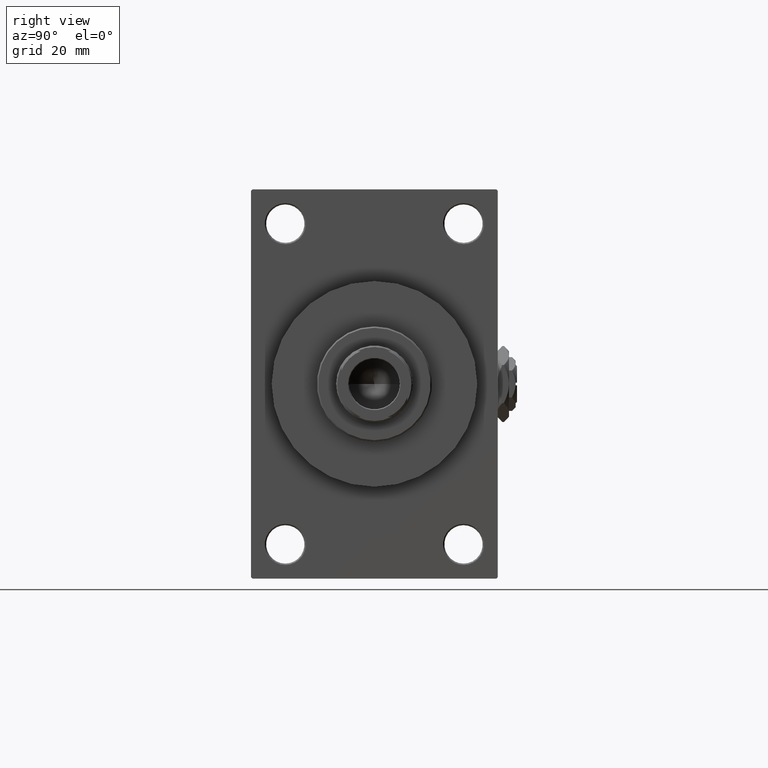
[diagram: clean part render]
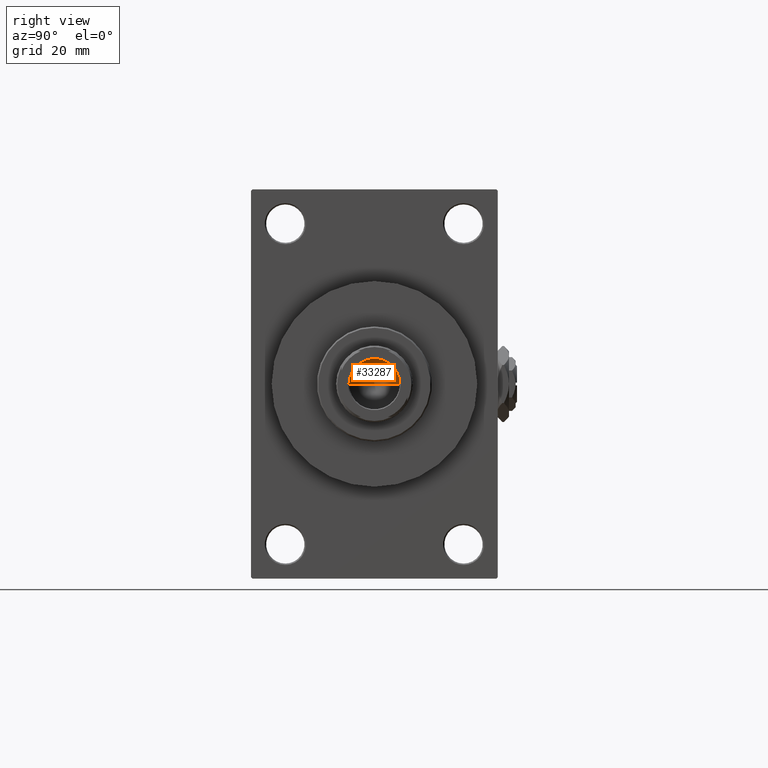
[diagram: same view with one face highlighted and labeled with its STEP entity id]
A machine part, right view. The second image highlights one B-rep face of the part: STEP entity #33287.
In plain terms, the highlighted conical surface has half-angle 59 deg.
Its self-contained STEP definition (entity closure, byte-faithful):
#1667 = CARTESIAN_POINT ( 'NONE',  ( 9.249999999999992895, 0.000000000000000000, 115.9999999999999858 ) ) ;
#2487 = EDGE_LOOP ( 'NONE', ( #23345, #18427, #16608 ) ) ;
#3490 = DIRECTION ( 'NONE',  ( -0.000000000000000000, -0.000000000000000000, 1.000000000000000000 ) ) ;
#3741 = DIRECTION ( 'NONE',  ( 1.000000000000000000, 0.000000000000000000, 0.000000000000000000 ) ) ;
#4047 = CARTESIAN_POINT ( 'NONE',  ( -9.769621978240258809E-15, 0.000000000000000000, 110.4420392739950501 ) ) ;
#5130 = EDGE_CURVE ( 'NONE', #15994, #25067, #42809, .T. ) ;
#8636 = DIRECTION ( 'NONE',  ( -0.8571673007021117785, 1.049727191138617956E-16, 0.5150380749100550437 ) ) ;
#12032 = CARTESIAN_POINT ( 'NONE',  ( -9.249999999999992895, 1.132798289211300712E-15, 115.9999999999999858 ) ) ;
#14604 = EDGE_CURVE ( 'NONE', #15994, #42587, #16136, .T. ) ;
#14922 = CIRCLE ( 'NONE', #47538, 9.249999999999992895 ) ;
#15994 = VERTEX_POINT ( 'NONE', #4047 ) ;
#16136 = LINE ( 'NONE', #23845, #18091 ) ;
#16608 = ORIENTED_EDGE ( 'NONE', *, *, #42563, .T. ) ;
#18091 = VECTOR ( 'NONE', #8636, 1000.000000000000000 ) ;
#18427 = ORIENTED_EDGE ( 'NONE', *, *, #14604, .T. ) ;
#18437 = CARTESIAN_POINT ( 'NONE',  ( 9.249999999999992895, 0.000000000000000000, 115.9999999999999858 ) ) ;
#19468 = AXIS2_PLACEMENT_3D ( 'NONE', #30172, #3490, #3741 ) ;
#23345 = ORIENTED_EDGE ( 'NONE', *, *, #5130, .F. ) ;
#23845 = CARTESIAN_POINT ( 'NONE',  ( -9.249999999999992895, 1.132798289211300712E-15, 115.9999999999999858 ) ) ;
#25067 = VERTEX_POINT ( 'NONE', #18437 ) ;
#30172 = CARTESIAN_POINT ( 'NONE',  ( 0.000000000000000000, 0.000000000000000000, 115.9999999999999858 ) ) ;
#30978 = DIRECTION ( 'NONE',  ( -0.000000000000000000, -0.000000000000000000, 1.000000000000000000 ) ) ;
#33287 = ADVANCED_FACE ( 'NONE', ( #37905 ), #48887, .F. ) ;
#33756 = VECTOR ( 'NONE', #47280, 1000.000000000000000 ) ;
#37905 = FACE_OUTER_BOUND ( 'NONE', #2487, .T. ) ;
#42563 = EDGE_CURVE ( 'NONE', #42587, #25067, #14922, .T. ) ;
#42587 = VERTEX_POINT ( 'NONE', #12032 ) ;
#42809 = LINE ( 'NONE', #1667, #33756 ) ;
#43615 = CARTESIAN_POINT ( 'NONE',  ( 0.000000000000000000, 0.000000000000000000, 115.9999999999999858 ) ) ;
#46180 = DIRECTION ( 'NONE',  ( 1.000000000000000000, 0.000000000000000000, 0.000000000000000000 ) ) ;
#47280 = DIRECTION ( 'NONE',  ( 0.8571673007021117785, 0.000000000000000000, 0.5150380749100550437 ) ) ;
#47538 = AXIS2_PLACEMENT_3D ( 'NONE', #43615, #30978, #46180 ) ;
#48887 = CONICAL_SURFACE ( 'NONE', #19468, 9.249999999999992895, 1.029744258676653423 ) ;